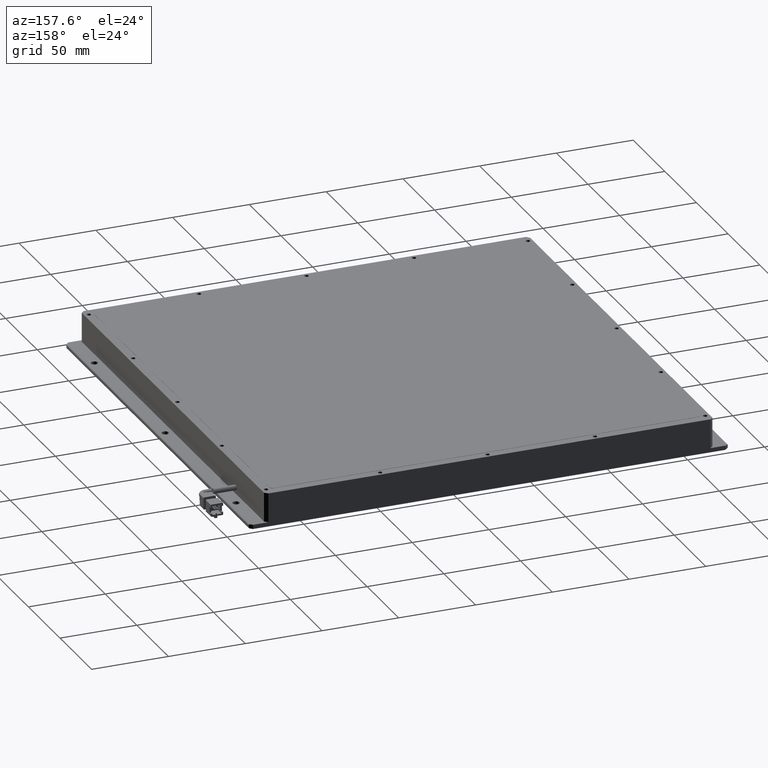
[diagram: clean part render]
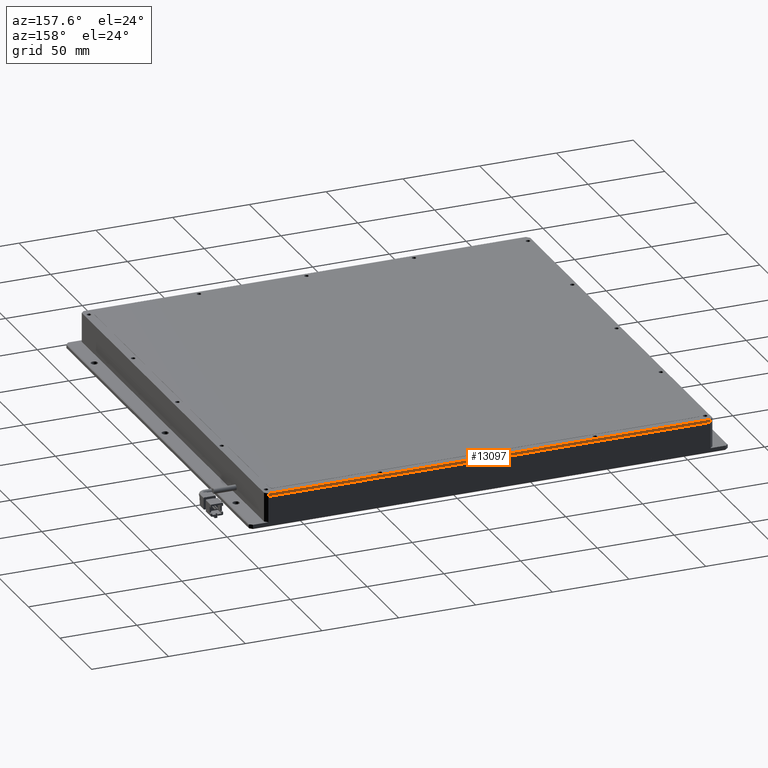
[diagram: same view with one face highlighted and labeled with its STEP entity id]
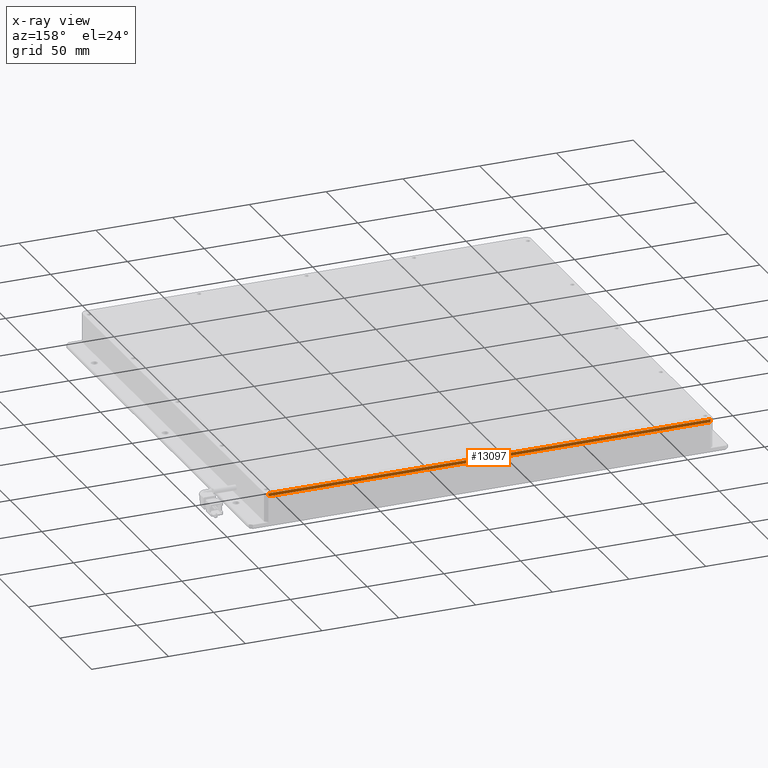
[diagram: x-ray of the same camera — body ghosted, the highlighted face saturated]
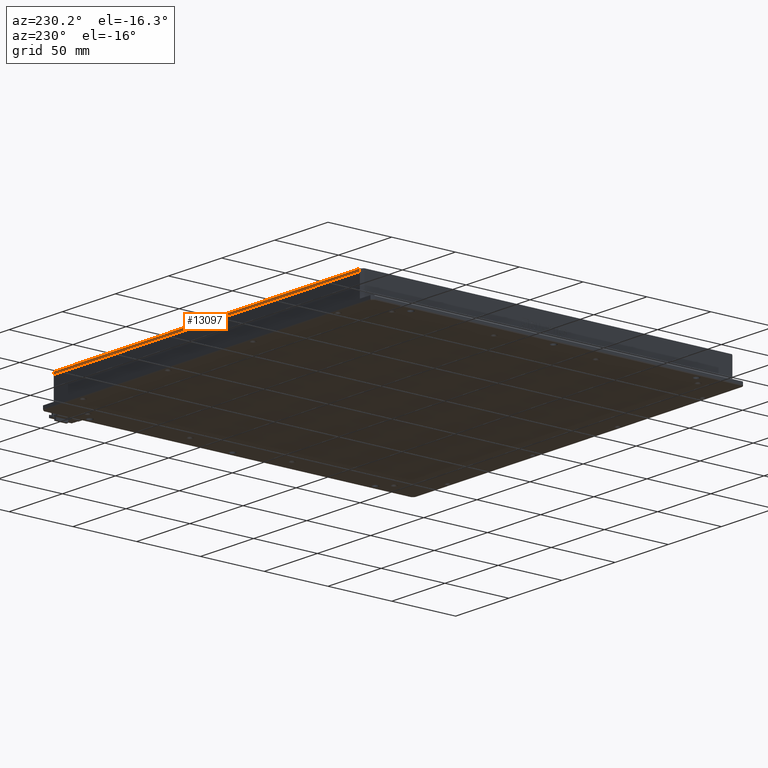
[diagram: same view with one face highlighted and labeled with its STEP entity id]
A machine part, auxiliary view. The second image highlights one B-rep face of the part: STEP entity #13097.
The next image is the same camera in x-ray: the body ghosted, the highlighted face saturated — about 0% of this face is hidden behind the body in this view.
A second angle (auxiliary view) of the same face is appended — the face is thin or edge-on in the first view.
In plain terms, the highlighted planar face has unit normal (0, -1, 0).
Its self-contained STEP definition (entity closure, byte-faithful):
#982 = CARTESIAN_POINT ( 'NONE',  ( 176.9193228736581000, 159.2698045692266100, 10.49999999997180600 ) ) ;
#1297 = EDGE_LOOP ( 'NONE', ( #22677, #26721, #2420, #16780 ) ) ;
#1500 = DIRECTION ( 'NONE',  ( -1.000000000000000000, -0.0000000000000000000, -0.0000000000000000000 ) ) ;
#1990 = DIRECTION ( 'NONE',  ( 0.0000000000000000000, 0.0000000000000000000, 1.000000000000000000 ) ) ;
#2420 = ORIENTED_EDGE ( 'NONE', *, *, #23679, .T. ) ;
#2739 = EDGE_CURVE ( 'NONE', #14003, #4985, #26874, .T. ) ;
#2760 = CARTESIAN_POINT ( 'NONE',  ( 176.9193228736580700, 159.2698045692265800, 10.49999999997180600 ) ) ;
#4985 = VERTEX_POINT ( 'NONE', #982 ) ;
#5482 = CARTESIAN_POINT ( 'NONE',  ( -113.0806771263418400, 159.2698045692265800, 10.49999999997180600 ) ) ;
#6487 = VERTEX_POINT ( 'NONE', #15417 ) ;
#7383 = LINE ( 'NONE', #20211, #13107 ) ;
#7679 = DIRECTION ( 'NONE',  ( 1.000000000000000000, 0.0000000000000000000, 0.0000000000000000000 ) ) ;
#9237 = VECTOR ( 'NONE', #1500, 1000.000000000000000 ) ;
#9932 = EDGE_CURVE ( 'NONE', #6487, #19170, #14749, .T. ) ;
#11914 = PLANE ( 'NONE',  #22434 ) ;
#12763 = CARTESIAN_POINT ( 'NONE',  ( -111.0806771263417300, 159.2698045692266100, 10.49999999997180600 ) ) ;
#13097 = ADVANCED_FACE ( 'NONE', ( #13287 ), #11914, .F. ) ;
#13107 = VECTOR ( 'NONE', #22270, 1000.000000000000000 ) ;
#13287 = FACE_OUTER_BOUND ( 'NONE', #1297, .T. ) ;
#14003 = VERTEX_POINT ( 'NONE', #19585 ) ;
#14445 = CARTESIAN_POINT ( 'NONE',  ( -113.0806771263418400, 159.2698045692266600, 8.499999999971805700 ) ) ;
#14749 = LINE ( 'NONE', #18412, #25351 ) ;
#15417 = CARTESIAN_POINT ( 'NONE',  ( -111.0806771263417300, 159.2698045692266100, 8.499999999971805700 ) ) ;
#16389 = EDGE_CURVE ( 'NONE', #4985, #19170, #7383, .T. ) ;
#16780 = ORIENTED_EDGE ( 'NONE', *, *, #9932, .T. ) ;
#18412 = CARTESIAN_POINT ( 'NONE',  ( -111.0806771263417800, 159.2698045692266400, 10.49999999997180600 ) ) ;
#19170 = VERTEX_POINT ( 'NONE', #12763 ) ;
#19585 = CARTESIAN_POINT ( 'NONE',  ( 176.9193228736581000, 159.2698045692266400, 8.499999999971805700 ) ) ;
#20211 = CARTESIAN_POINT ( 'NONE',  ( -113.0806771263418400, 159.2698045692265800, 10.49999999997180600 ) ) ;
#20529 = DIRECTION ( 'NONE',  ( 0.0000000000000000000, 0.0000000000000000000, 1.000000000000000000 ) ) ;
#20539 = DIRECTION ( 'NONE',  ( 0.0000000000000000000, -1.000000000000000000, 0.0000000000000000000 ) ) ;
#20672 = LINE ( 'NONE', #14445, #9237 ) ;
#21220 = VECTOR ( 'NONE', #1990, 1000.000000000000000 ) ;
#22270 = DIRECTION ( 'NONE',  ( -1.000000000000000000, -0.0000000000000000000, -0.0000000000000000000 ) ) ;
#22434 = AXIS2_PLACEMENT_3D ( 'NONE', #5482, #20539, #7679 ) ;
#22677 = ORIENTED_EDGE ( 'NONE', *, *, #16389, .F. ) ;
#23679 = EDGE_CURVE ( 'NONE', #14003, #6487, #20672, .T. ) ;
#25351 = VECTOR ( 'NONE', #20529, 1000.000000000000000 ) ;
#26721 = ORIENTED_EDGE ( 'NONE', *, *, #2739, .F. ) ;
#26874 = LINE ( 'NONE', #2760, #21220 ) ;